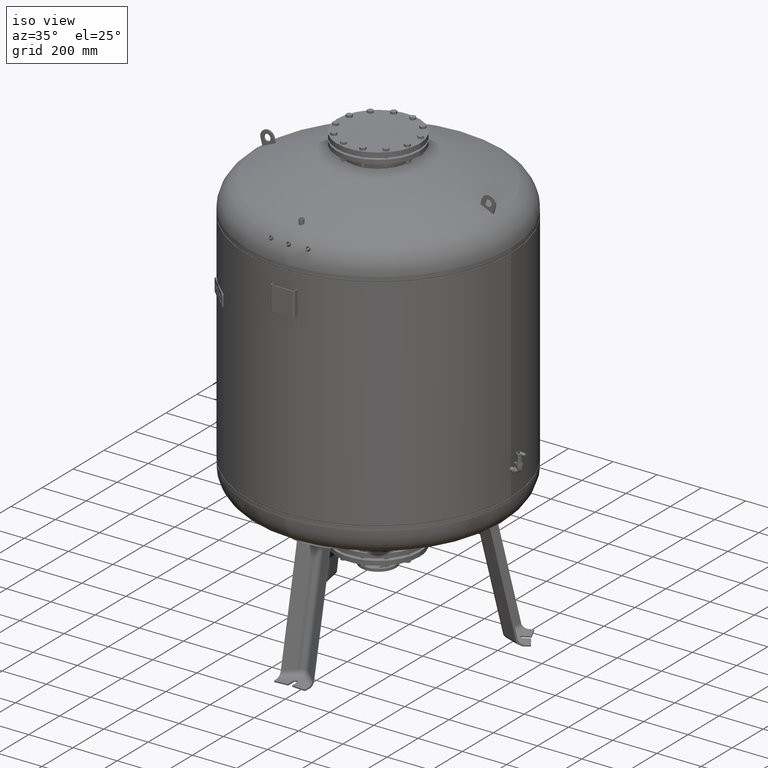
[diagram: clean part render]
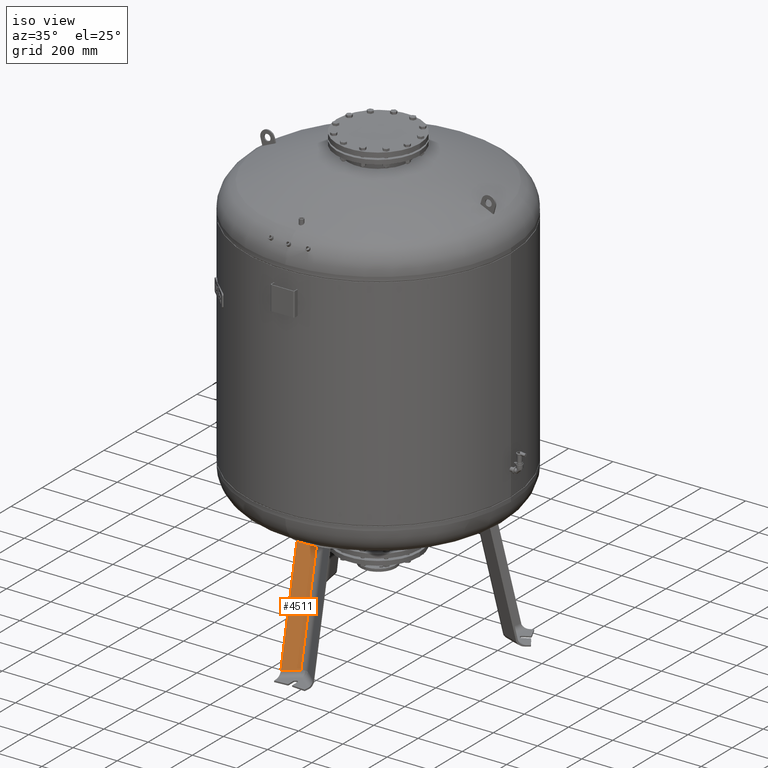
[diagram: same view with one face highlighted and labeled with its STEP entity id]
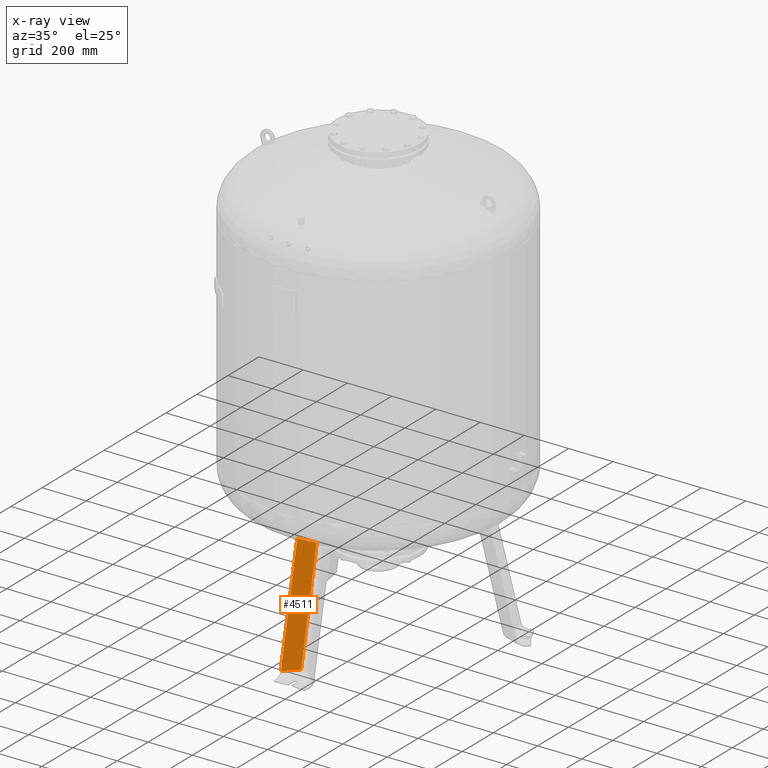
[diagram: x-ray of the same camera — body ghosted, the highlighted face saturated]
A machine part, iso view. The second image highlights one B-rep face of the part: STEP entity #4511.
The next image is the same camera in x-ray: the body ghosted, the highlighted face saturated — about 0% of this face is hidden behind the body in this view.
In plain terms, the highlighted planar face has unit normal (0.6455, -0.7471, 0.1588).
Its self-contained STEP definition (entity closure, byte-faithful):
#3762=CARTESIAN_POINT('',(-16.136450826554505,-476.124712592942840,27.029948423057292));
#3763=VERTEX_POINT('',#3762);
#4095=CARTESIAN_POINT('',(-72.837866169855019,-525.111649658243320,27.029948423057292));
#4096=VERTEX_POINT('',#4095);
#4097=CARTESIAN_POINT('',(-16.136450826554505,-476.124712592942840,27.029948423057292));
#4098=DIRECTION('',(-0.756707249513242,-0.653753882232530,0.0));
#4099=VECTOR('',#4098,74.931772333057651);
#4100=LINE('',#4097,#4099);
#4101=EDGE_CURVE('',#3763,#4096,#4100,.T.);
#4382=CARTESIAN_POINT('',(-72.837866169854905,-418.875260683767750,526.832862714638170));
#4383=VERTEX_POINT('',#4382);
#4391=CARTESIAN_POINT('',(-16.136450826554402,-373.822192772864470,508.325463444113210));
#4392=VERTEX_POINT('',#4391);
#4393=CARTESIAN_POINT('',(45.036832094930027,-115.262731376360140,1476.110567297756700));
#4394=DIRECTION('',(-0.645458033062181,0.747104967402683,-0.158802063077709));
#4395=DIRECTION('',(5.092368E-017,0.207911690817760,0.978147600733806));
#4396=AXIS2_PLACEMENT_3D('',#4393,#4394,#4395);
#4397=CIRCLE('',#4396,1003.595123972834800);
#4398=EDGE_CURVE('',#4392,#4383,#4397,.T.);
#4490=CARTESIAN_POINT('',(1.530690E-014,-472.504855353818410,-21.527282742766886));
#4491=DIRECTION('',(0.645458033062181,-0.747104967402683,0.158802063077708));
#4492=DIRECTION('',(2.013321E-016,0.207911690817760,0.978147600733806));
#4493=AXIS2_PLACEMENT_3D('',#4490,#4491,#4492);
#4494=PLANE('',#4493);
#4495=ORIENTED_EDGE('',*,*,#4398,.T.);
#4496=CARTESIAN_POINT('',(-72.837866169855019,-525.111649658243320,27.029948423057292));
#4497=DIRECTION('',(2.224927E-016,0.207911690817760,0.978147600733805));
#4498=VECTOR('',#4497,510.968808712130110);
#4499=LINE('',#4496,#4498);
#4500=EDGE_CURVE('',#4096,#4383,#4499,.T.);
#4501=ORIENTED_EDGE('',*,*,#4500,.F.);
#4502=ORIENTED_EDGE('',*,*,#4101,.F.);
#4503=CARTESIAN_POINT('',(-16.136450826554402,-373.822192772864470,508.325463444113210));
#4504=DIRECTION('',(-2.093875E-016,-0.207911690817760,-0.978147600733806));
#4505=VECTOR('',#4504,492.047943132496980);
#4506=LINE('',#4503,#4505);
#4507=EDGE_CURVE('',#4392,#3763,#4506,.T.);
#4508=ORIENTED_EDGE('',*,*,#4507,.F.);
#4509=EDGE_LOOP('',(#4495,#4501,#4502,#4508));
#4510=FACE_OUTER_BOUND('',#4509,.T.);
#4511=ADVANCED_FACE('',(#4510),#4494,.T.);